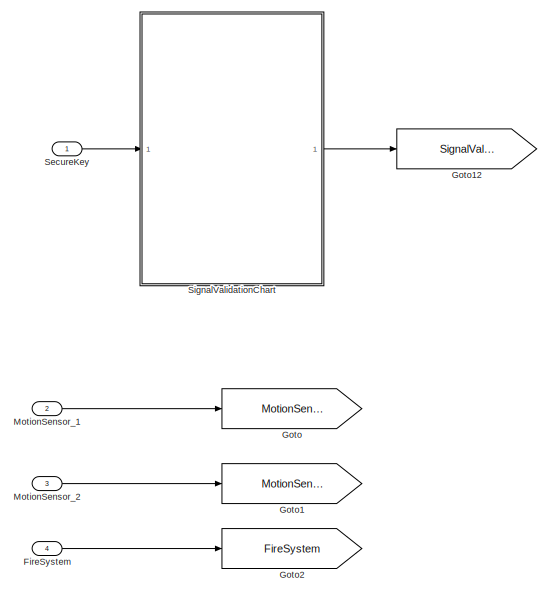
[diagram: root canvas - part 1/2, middle left region]
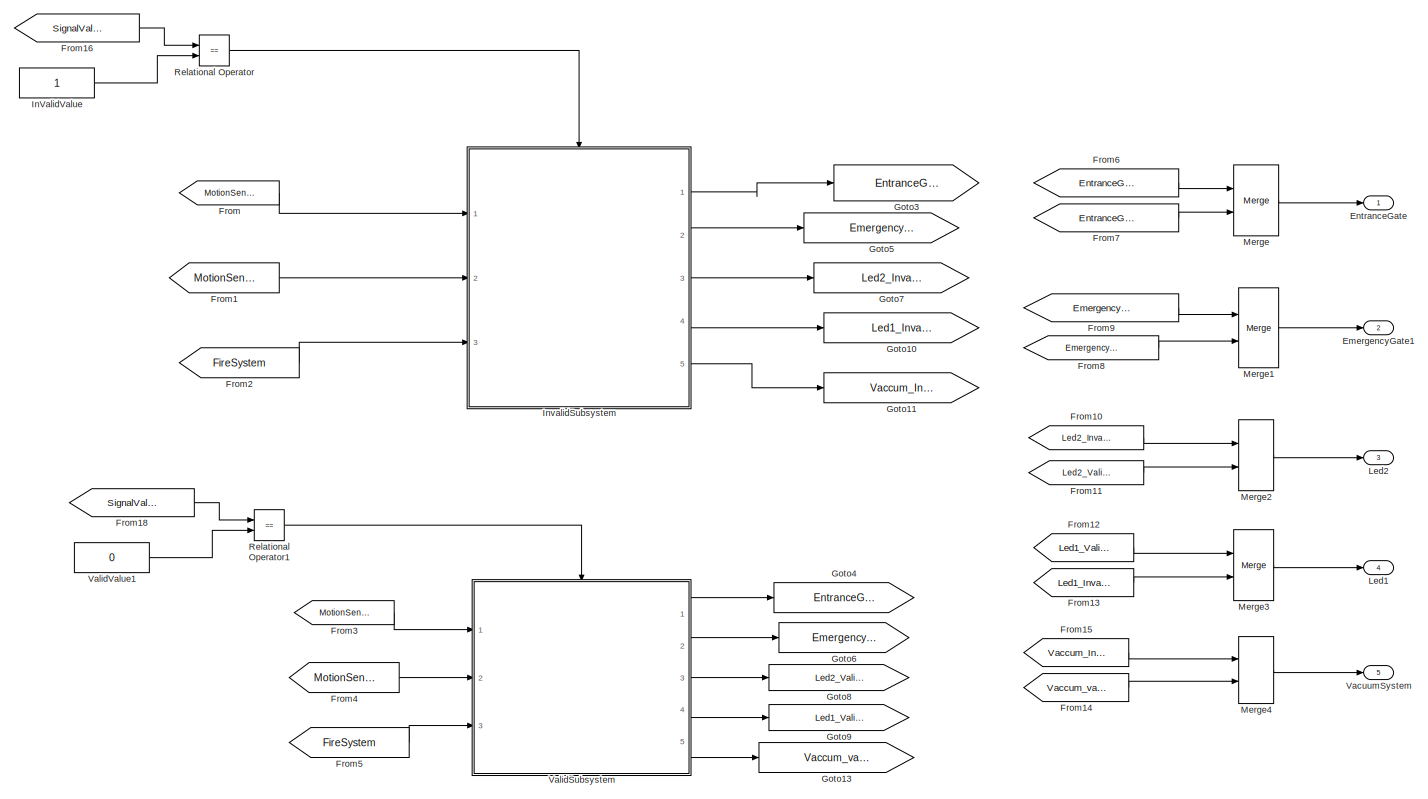
[diagram: root canvas - part 2/2, center side, full height]
MODEL slx_e77f0a074a90
KIND model
CONFIG AbsTol = auto
CONFIG FixedStep = auto
CONFIG MaxStep = auto
CONFIG MinStep = auto
CONFIG RelTol = 1e-3
CONFIG SampleTimeConstraint = Unconstrained
CONFIG Solver = VariableStepAuto
CONFIG SolverMode = Auto
CONFIG SolverName = VariableStepAuto
CONFIG StartTime = 0.0
CONFIG StopTime = 10.0
BLOCK [Outport] EmergencyGate1
  IconDisplay = Port number
  Port = 2
BLOCK [Outport] EntranceGate
  IconDisplay = Port number
BLOCK [Inport] FireSystem
  IconDisplay = Port number
  Port = 4
BLOCK [From] From
  GotoTag = MotionSensor_1
BLOCK [From] From1
  GotoTag = MotionSensor_2
BLOCK [From] From10
  GotoTag = Led2_InvalidChart
BLOCK [From] From11
  GotoTag = Led2_ValidChart
BLOCK [From] From12
  GotoTag = Led1_ValidChart
BLOCK [From] From13
  GotoTag = Led1_InvalidChart
BLOCK [From] From14
  GotoTag = Vaccum_validChart
BLOCK [From] From15
  GotoTag = Vaccum_InvalidChart
BLOCK [From] From16
  GotoTag = SignalValidity
BLOCK [From] From18
  GotoTag = SignalValidity
BLOCK [From] From2
  GotoTag = FireSystem
BLOCK [From] From3
  GotoTag = MotionSensor_1
BLOCK [From] From4
  GotoTag = MotionSensor_2
BLOCK [From] From5
  GotoTag = FireSystem
BLOCK [From] From6
  GotoTag = EntranceGate_InvalidChart
BLOCK [From] From7
  GotoTag = EntranceGate_validChart
BLOCK [From] From8
  GotoTag = EmergencyGate_validChart
BLOCK [From] From9
  GotoTag = EmergencyGate_InvalidChart
BLOCK [Goto] Goto
  GotoTag = MotionSensor_1
BLOCK [Goto] Goto1
  GotoTag = MotionSensor_2
BLOCK [Goto] Goto10
  GotoTag = Led1_InvalidChart
BLOCK [Goto] Goto11
  GotoTag = Vaccum_InvalidChart
BLOCK [Goto] Goto12
  GotoTag = SignalValidity
BLOCK [Goto] Goto13
  GotoTag = Vaccum_validChart
BLOCK [Goto] Goto2
  GotoTag = FireSystem
BLOCK [Goto] Goto3
  GotoTag = EntranceGate_InvalidChart
BLOCK [Goto] Goto4
  GotoTag = EntranceGate_validChart
BLOCK [Goto] Goto5
  GotoTag = EmergencyGate_InvalidChart
BLOCK [Goto] Goto6
  GotoTag = EmergencyGate_validChart
BLOCK [Goto] Goto7
  GotoTag = Led2_InvalidChart
BLOCK [Goto] Goto8
  GotoTag = Led2_ValidChart
BLOCK [Goto] Goto9
  GotoTag = Led1_ValidChart
BLOCK [Constant] InValidValue
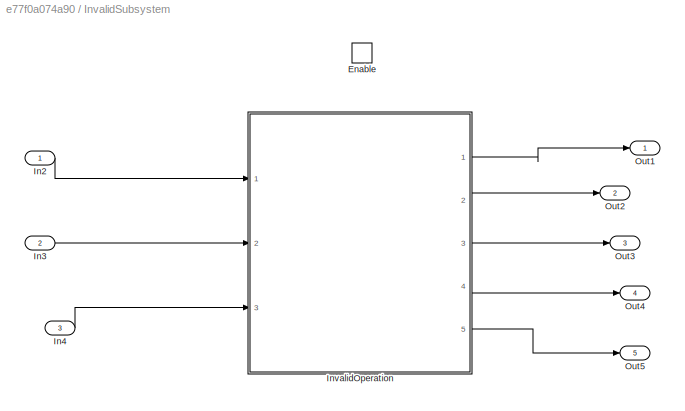
BLOCK [SubSystem] InvalidSubsystem
  Ports = [3, 5, 1]
  RequestExecContextInheritance = off
  Variant = off
BLOCK [EnablePort] InvalidSubsystem/Enable
  Ports = []
BLOCK [Inport] InvalidSubsystem/In2
  IconDisplay = Port number
BLOCK [Inport] InvalidSubsystem/In3
  IconDisplay = Port number
  Port = 2
BLOCK [Inport] InvalidSubsystem/In4
  IconDisplay = Port number
  Port = 3
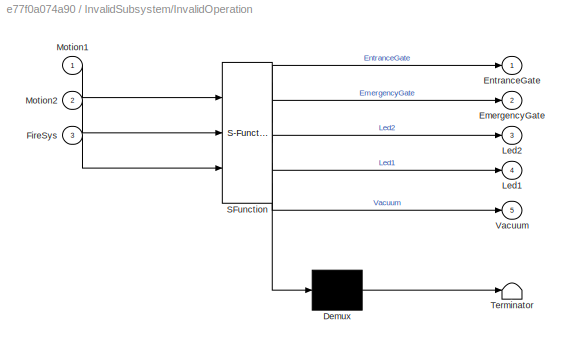
BLOCK [SubSystem] InvalidSubsystem/InvalidOperation
  ErrorFcn = Stateflow.Translate.translate
  PermitHierarchicalResolution = ExplicitOnly
  Ports = [3, 5]
  RequestExecContextInheritance = off
  SFBlockType = Chart
  TreatAsAtomicUnit = on
  Variant = off
BLOCK [Demux] InvalidSubsystem/InvalidOperation/ Demux 
  Outputs = 1
  Ports = [1, 1]
BLOCK [S-Function] InvalidSubsystem/InvalidOperation/ SFunction 
  EnableBusSupport = on
  FunctionName = sf_sfun
  PortCounts = [3 6]
  Ports = [3, 6]
  SFunctionDeploymentMode = off
  Tag = Stateflow S-Function SecureRoom_Subsystem 1
BLOCK [Terminator] InvalidSubsystem/InvalidOperation/ Terminator 
BLOCK [Outport] InvalidSubsystem/InvalidOperation/EmergencyGate
  IconDisplay = Port number
  Port = 2
BLOCK [Outport] InvalidSubsystem/InvalidOperation/EntranceGate
  IconDisplay = Port number
BLOCK [Inport] InvalidSubsystem/InvalidOperation/FireSys
  IconDisplay = Port number
  Port = 3
BLOCK [Outport] InvalidSubsystem/InvalidOperation/Led1
  IconDisplay = Port number
  Port = 4
BLOCK [Outport] InvalidSubsystem/InvalidOperation/Led2
  IconDisplay = Port number
  Port = 3
BLOCK [Inport] InvalidSubsystem/InvalidOperation/Motion1
  IconDisplay = Port number
BLOCK [Inport] InvalidSubsystem/InvalidOperation/Motion2
  IconDisplay = Port number
  Port = 2
BLOCK [Outport] InvalidSubsystem/InvalidOperation/Vacuum
  IconDisplay = Port number
  Port = 5
BLOCK [Outport] InvalidSubsystem/Out1
  IconDisplay = Port number
BLOCK [Outport] InvalidSubsystem/Out2
  IconDisplay = Port number
  Port = 2
BLOCK [Outport] InvalidSubsystem/Out3
  IconDisplay = Port number
  Port = 3
BLOCK [Outport] InvalidSubsystem/Out4
  IconDisplay = Port number
  Port = 4
BLOCK [Outport] InvalidSubsystem/Out5
  IconDisplay = Port number
  Port = 5
BLOCK [Outport] Led1 
  IconDisplay = Port number
  Port = 4
BLOCK [Outport] Led2
  IconDisplay = Port number
  Port = 3
BLOCK [Merge] Merge
  Ports = [2, 1]
BLOCK [Merge] Merge1
  Ports = [2, 1]
BLOCK [Merge] Merge2
  Ports = [2, 1]
BLOCK [Merge] Merge3
  Ports = [2, 1]
BLOCK [Merge] Merge4
  Ports = [2, 1]
BLOCK [Inport] MotionSensor_1
  IconDisplay = Port number
  Port = 2
BLOCK [Inport] MotionSensor_2
  IconDisplay = Port number
  Port = 3
BLOCK [RelationalOperator] Relational Operator
  InputSameDT = off
  Operator = ==
  OutDataTypeStr = boolean
  Ports = [2, 1]
BLOCK [RelationalOperator] Relational Operator1
  InputSameDT = off
  Operator = ==
  OutDataTypeStr = boolean
  Ports = [2, 1]
BLOCK [Inport] SecureKey
  IconDisplay = Port number
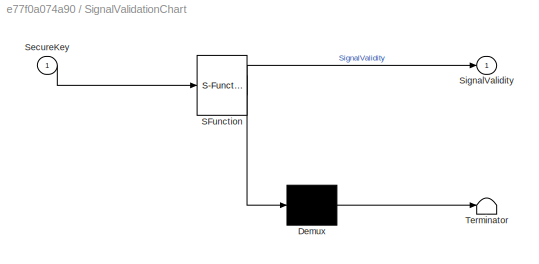
BLOCK [SubSystem] SignalValidationChart
  ErrorFcn = Stateflow.Translate.translate
  PermitHierarchicalResolution = ExplicitOnly
  Ports = [1, 1]
  RequestExecContextInheritance = off
  SFBlockType = Chart
  TreatAsAtomicUnit = on
  Variant = off
BLOCK [Demux] SignalValidationChart/ Demux 
  Outputs = 1
  Ports = [1, 1]
BLOCK [S-Function] SignalValidationChart/ SFunction 
  EnableBusSupport = on
  FunctionName = sf_sfun
  PortCounts = [1 2]
  Ports = [1, 2]
  SFunctionDeploymentMode = off
  Tag = Stateflow S-Function SecureRoom_Subsystem 3
BLOCK [Terminator] SignalValidationChart/ Terminator 
BLOCK [Inport] SignalValidationChart/SecureKey
  IconDisplay = Port number
BLOCK [Outport] SignalValidationChart/SignalValidity
  IconDisplay = Port number
BLOCK [Outport] VacuumSystem
  IconDisplay = Port number
  Port = 5
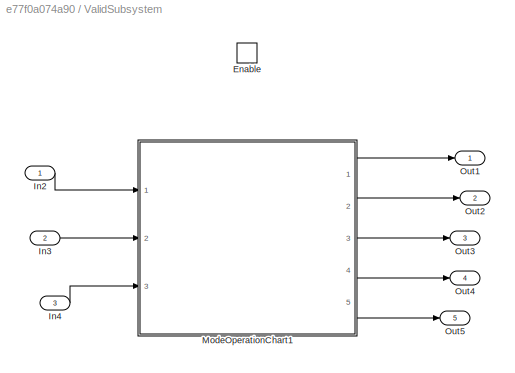
BLOCK [SubSystem] ValidSubsystem
  Ports = [3, 5, 1]
  RequestExecContextInheritance = off
  Variant = off
BLOCK [EnablePort] ValidSubsystem/Enable
  Ports = []
BLOCK [Inport] ValidSubsystem/In2
  IconDisplay = Port number
BLOCK [Inport] ValidSubsystem/In3
  IconDisplay = Port number
  Port = 2
BLOCK [Inport] ValidSubsystem/In4
  IconDisplay = Port number
  Port = 3
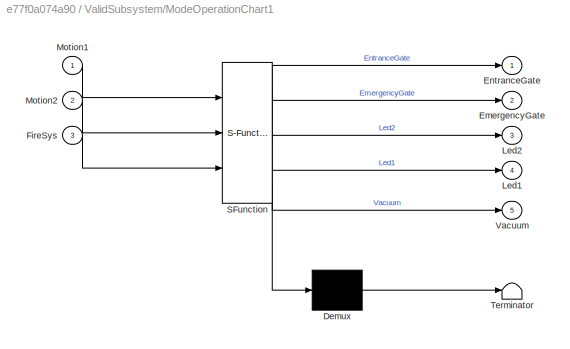
BLOCK [SubSystem] ValidSubsystem/ModeOperationChart1
  ErrorFcn = Stateflow.Translate.translate
  PermitHierarchicalResolution = ExplicitOnly
  Ports = [3, 5]
  RequestExecContextInheritance = off
  SFBlockType = Chart
  TreatAsAtomicUnit = on
  Variant = off
BLOCK [Demux] ValidSubsystem/ModeOperationChart1/ Demux 
  Outputs = 1
  Ports = [1, 1]
BLOCK [S-Function] ValidSubsystem/ModeOperationChart1/ SFunction 
  EnableBusSupport = on
  FunctionName = sf_sfun
  PortCounts = [3 6]
  Ports = [3, 6]
  SFunctionDeploymentMode = off
  Tag = Stateflow S-Function SecureRoom_Subsystem 2
BLOCK [Terminator] ValidSubsystem/ModeOperationChart1/ Terminator 
BLOCK [Outport] ValidSubsystem/ModeOperationChart1/EmergencyGate
  IconDisplay = Port number
  Port = 2
BLOCK [Outport] ValidSubsystem/ModeOperationChart1/EntranceGate
  IconDisplay = Port number
BLOCK [Inport] ValidSubsystem/ModeOperationChart1/FireSys
  IconDisplay = Port number
  Port = 3
BLOCK [Outport] ValidSubsystem/ModeOperationChart1/Led1
  IconDisplay = Port number
  Port = 4
BLOCK [Outport] ValidSubsystem/ModeOperationChart1/Led2
  IconDisplay = Port number
  Port = 3
BLOCK [Inport] ValidSubsystem/ModeOperationChart1/Motion1
  IconDisplay = Port number
BLOCK [Inport] ValidSubsystem/ModeOperationChart1/Motion2
  IconDisplay = Port number
  Port = 2
BLOCK [Outport] ValidSubsystem/ModeOperationChart1/Vacuum
  IconDisplay = Port number
  Port = 5
BLOCK [Outport] ValidSubsystem/Out1
  IconDisplay = Port number
BLOCK [Outport] ValidSubsystem/Out2
  IconDisplay = Port number
  Port = 2
BLOCK [Outport] ValidSubsystem/Out3
  IconDisplay = Port number
  Port = 3
BLOCK [Outport] ValidSubsystem/Out4
  IconDisplay = Port number
  Port = 4
BLOCK [Outport] ValidSubsystem/Out5
  IconDisplay = Port number
  Port = 5
BLOCK [Constant] ValidValue1
  Value = 0
LINE FireSystem:1 -> Goto2:1
LINE From10:1 -> Merge2:1
LINE From11:1 -> Merge2:2
LINE From12:1 -> Merge3:1
LINE From13:1 -> Merge3:2
LINE From14:1 -> Merge4:2
LINE From15:1 -> Merge4:1
LINE From16:1 -> Relational Operator:1
LINE From18:1 -> Relational Operator1:1
LINE From1:1 -> InvalidSubsystem:2
LINE From2:1 -> InvalidSubsystem:3
LINE From3:1 -> ValidSubsystem:1
LINE From4:1 -> ValidSubsystem:2
LINE From5:1 -> ValidSubsystem:3
LINE From6:1 -> Merge:1
LINE From7:1 -> Merge:2
LINE From8:1 -> Merge1:2
LINE From9:1 -> Merge1:1
LINE From:1 -> InvalidSubsystem:1
LINE InValidValue:1 -> Relational Operator:2
LINE InvalidSubsystem/In2:1 -> InvalidSubsystem/InvalidOperation:1
LINE InvalidSubsystem/In3:1 -> InvalidSubsystem/InvalidOperation:2
LINE InvalidSubsystem/In4:1 -> InvalidSubsystem/InvalidOperation:3
LINE InvalidSubsystem/InvalidOperation:1 -> InvalidSubsystem/Out1:1
LINE InvalidSubsystem/InvalidOperation:2 -> InvalidSubsystem/Out2:1
LINE InvalidSubsystem/InvalidOperation:3 -> InvalidSubsystem/Out3:1
LINE InvalidSubsystem/InvalidOperation:4 -> InvalidSubsystem/Out4:1
LINE InvalidSubsystem/InvalidOperation:5 -> InvalidSubsystem/Out5:1
LINE InvalidSubsystem:1 -> Goto3:1
LINE InvalidSubsystem:2 -> Goto5:1
LINE InvalidSubsystem:3 -> Goto7:1
LINE InvalidSubsystem:4 -> Goto10:1
LINE InvalidSubsystem:5 -> Goto11:1
LINE Merge1:1 -> EmergencyGate1:1
LINE Merge2:1 -> Led2:1
LINE Merge3:1 -> Led1 :1
LINE Merge4:1 -> VacuumSystem:1
LINE Merge:1 -> EntranceGate:1
LINE MotionSensor_1:1 -> Goto:1
LINE MotionSensor_2:1 -> Goto1:1
LINE Relational Operator1:1 -> ValidSubsystem:enable
LINE Relational Operator:1 -> InvalidSubsystem:enable
LINE SecureKey:1 -> SignalValidationChart:1
LINE SignalValidationChart:1 -> Goto12:1
LINE ValidSubsystem/In2:1 -> ValidSubsystem/ModeOperationChart1:1
LINE ValidSubsystem/In3:1 -> ValidSubsystem/ModeOperationChart1:2
LINE ValidSubsystem/In4:1 -> ValidSubsystem/ModeOperationChart1:3
LINE ValidSubsystem/ModeOperationChart1:1 -> ValidSubsystem/Out1:1
LINE ValidSubsystem/ModeOperationChart1:2 -> ValidSubsystem/Out2:1
LINE ValidSubsystem/ModeOperationChart1:3 -> ValidSubsystem/Out3:1
LINE ValidSubsystem/ModeOperationChart1:4 -> ValidSubsystem/Out4:1
LINE ValidSubsystem/ModeOperationChart1:5 -> ValidSubsystem/Out5:1
LINE ValidSubsystem:1 -> Goto4:1
LINE ValidSubsystem:2 -> Goto6:1
LINE ValidSubsystem:3 -> Goto8:1
LINE ValidSubsystem:4 -> Goto9:1
LINE ValidSubsystem:5 -> Goto13:1
LINE ValidValue1:1 -> Relational Operator1:2
CHART InvalidSubsystem/InvalidOperation states=1 transitions=1
  STATE_LABEL 'Invalid\nen:\nEntranceGate=0;\nEmergencyGate=0;\nLed1=0;\nLed2=0;\nVacuum=0;\ndu:\nex:'
CHART ValidSubsystem/ModeOperationChart1 states=4 transitions=8
  STATE_LABEL 'Room2\nen:\nLed1=0;\nLed2=1;\nVacuum=0;\nEntranceGate=1;\nEmergencyGate=1;\ndu:\nex:'
  STATE_LABEL 'Room1\nen:\nLed1=1;\nLed2=0;\nVacuum=0;\nEntranceGate=1;\nEmergencyGate=1;\ndu:\nex:'
  STATE_LABEL 'Emergency\nen:\nLed1=1;\nLed2=1;\nVacuum=1;\ndu:\nEmergencyCounter++;\nex:'
  STATE_LABEL 'SystemLocked\nen:\nEntranceGate=0;\nEmergencyGate=0;\ndu:\nex:'
CHART SignalValidationChart states=1 transitions=23
  STATE_LABEL 'The added condition of "InvalidCounter<3"\nto prevent counter increment if it reach value = 3'
